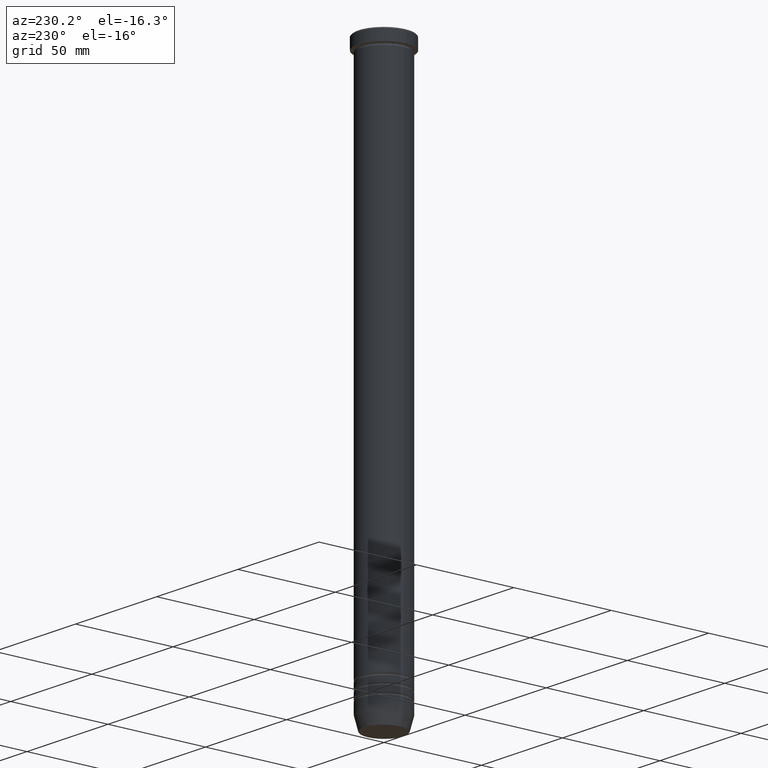
[diagram: clean part render]
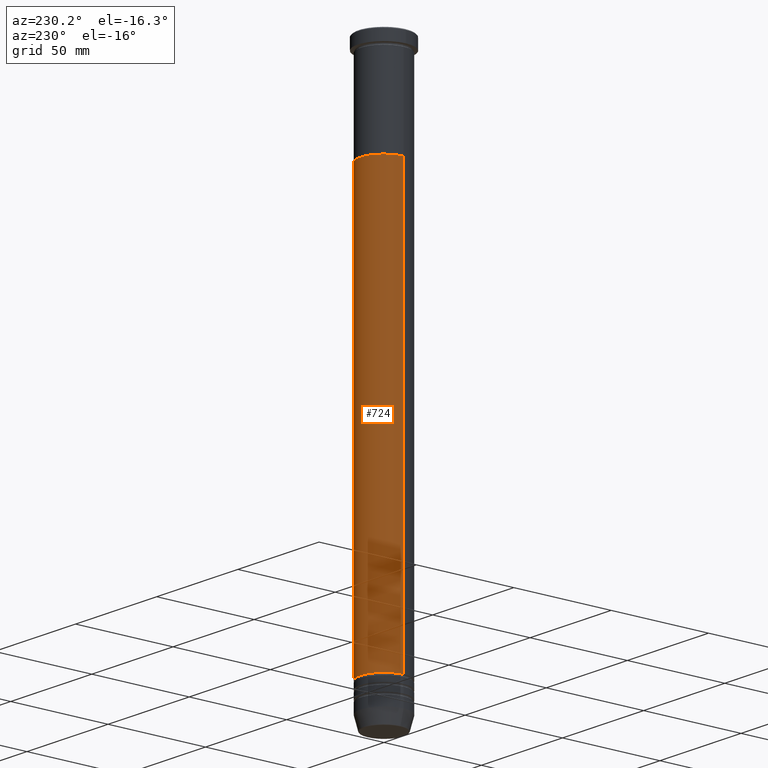
[diagram: same view with one face highlighted and labeled with its STEP entity id]
A machine part, auxiliary view. The second image highlights one B-rep face of the part: STEP entity #724.
In plain terms, the highlighted cylindrical surface (edge-blend (fillet) strip) has radius 12 mm, axis along (-0, -0, 1).
Its self-contained STEP definition (entity closure, byte-faithful):
#18 = CARTESIAN_POINT ( 'NONE',  ( 11.99999999999999822, 0.000000000000000000, 0.000000000000000000 ) ) ;
#123 = DIRECTION ( 'NONE',  ( 1.000000000000000000, 0.000000000000000000, 0.000000000000000000 ) ) ;
#176 = AXIS2_PLACEMENT_3D ( 'NONE', #222, #582, #294 ) ;
#222 = CARTESIAN_POINT ( 'NONE',  ( 0.000000000000000000, 0.000000000000000000, -52.00000000000000000 ) ) ;
#294 = DIRECTION ( 'NONE',  ( 1.000000000000000000, 0.000000000000000000, 0.000000000000000000 ) ) ;
#331 = FACE_OUTER_BOUND ( 'NONE', #340, .T. ) ;
#332 = EDGE_CURVE ( 'NONE', #1032, #655, #535, .T. ) ;
#340 = EDGE_LOOP ( 'NONE', ( #583, #805, #688, #618 ) ) ;
#341 = LINE ( 'NONE', #452, #718 ) ;
#365 = EDGE_CURVE ( 'NONE', #1059, #1022, #569, .T. ) ;
#371 = CARTESIAN_POINT ( 'NONE',  ( -12.00000000000000178, 1.469576158976824144E-15, -52.00000000000000000 ) ) ;
#382 = CARTESIAN_POINT ( 'NONE',  ( -11.99999999999999467, 1.469576158976823553E-15, -265.0000000000000000 ) ) ;
#452 = CARTESIAN_POINT ( 'NONE',  ( -11.99999999999999822, 1.469576158976823750E-15, 0.000000000000000000 ) ) ;
#495 = CARTESIAN_POINT ( 'NONE',  ( 0.000000000000000000, 0.000000000000000000, -265.0000000000000000 ) ) ;
#535 = CIRCLE ( 'NONE', #771, 11.99999999999999467 ) ;
#569 = CIRCLE ( 'NONE', #176, 12.00000000000000178 ) ;
#582 = DIRECTION ( 'NONE',  ( -0.000000000000000000, -0.000000000000000000, 1.000000000000000000 ) ) ;
#583 = ORIENTED_EDGE ( 'NONE', *, *, #332, .T. ) ;
#595 = EDGE_CURVE ( 'NONE', #1032, #1059, #948, .T. ) ;
#618 = ORIENTED_EDGE ( 'NONE', *, *, #595, .F. ) ;
#642 = EDGE_CURVE ( 'NONE', #655, #1022, #341, .T. ) ;
#655 = VERTEX_POINT ( 'NONE', #382 ) ;
#671 = CARTESIAN_POINT ( 'NONE',  ( 11.99999999999999467, 0.000000000000000000, -265.0000000000000000 ) ) ;
#688 = ORIENTED_EDGE ( 'NONE', *, *, #365, .F. ) ;
#690 = DIRECTION ( 'NONE',  ( -0.000000000000000000, -0.000000000000000000, 1.000000000000000000 ) ) ;
#718 = VECTOR ( 'NONE', #804, 1000.000000000000000 ) ;
#724 = ADVANCED_FACE ( 'NONE', ( #331 ), #955, .T. ) ;
#746 = DIRECTION ( 'NONE',  ( -0.000000000000000000, -0.000000000000000000, 1.000000000000000000 ) ) ;
#771 = AXIS2_PLACEMENT_3D ( 'NONE', #495, #746, #123 ) ;
#782 = DIRECTION ( 'NONE',  ( -0.000000000000000000, -0.000000000000000000, 1.000000000000000000 ) ) ;
#804 = DIRECTION ( 'NONE',  ( -0.000000000000000000, -0.000000000000000000, 1.000000000000000000 ) ) ;
#805 = ORIENTED_EDGE ( 'NONE', *, *, #642, .T. ) ;
#925 = VECTOR ( 'NONE', #690, 1000.000000000000000 ) ;
#948 = LINE ( 'NONE', #18, #925 ) ;
#955 = CYLINDRICAL_SURFACE ( 'NONE', #962, 11.99999999999999822 ) ;
#962 = AXIS2_PLACEMENT_3D ( 'NONE', #1047, #782, #1128 ) ;
#1022 = VERTEX_POINT ( 'NONE', #371 ) ;
#1032 = VERTEX_POINT ( 'NONE', #671 ) ;
#1047 = CARTESIAN_POINT ( 'NONE',  ( 0.000000000000000000, 0.000000000000000000, 0.000000000000000000 ) ) ;
#1059 = VERTEX_POINT ( 'NONE', #1061 ) ;
#1061 = CARTESIAN_POINT ( 'NONE',  ( 12.00000000000000178, 0.000000000000000000, -52.00000000000000000 ) ) ;
#1128 = DIRECTION ( 'NONE',  ( 1.000000000000000000, 0.000000000000000000, 0.000000000000000000 ) ) ;